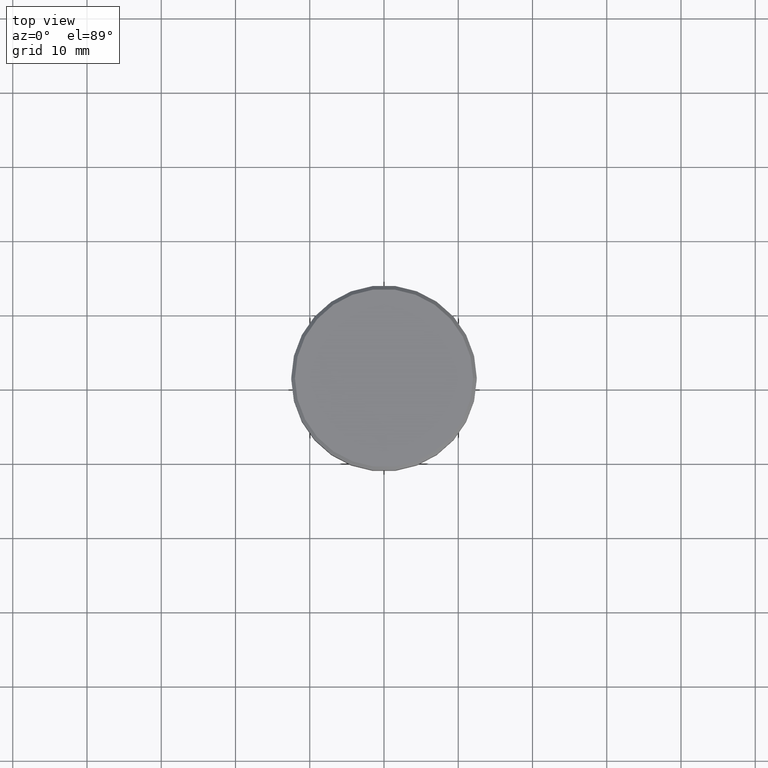
[diagram: clean part render]
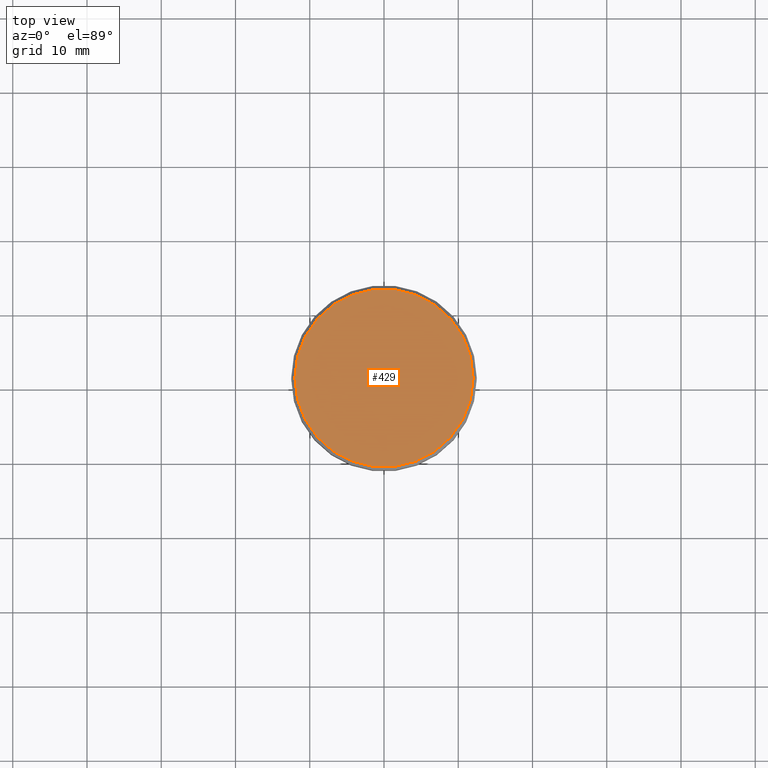
[diagram: same view with one face highlighted and labeled with its STEP entity id]
A machine part, top view. The second image highlights one B-rep face of the part: STEP entity #429.
In plain terms, the highlighted planar face has unit normal (0, -0, 1).
Its self-contained STEP definition (entity closure, byte-faithful):
#5 = ORIENTED_EDGE ( 'NONE', *, *, #711, .T. ) ;
#42 = CARTESIAN_POINT ( 'NONE',  ( 0.000000000000000000, 0.000000000000000000, 0.000000000000000000 ) ) ;
#85 = EDGE_CURVE ( 'NONE', #1008, #692, #334, .T. ) ;
#109 = CARTESIAN_POINT ( 'NONE',  ( 12.00000000000002487, 1.500192328955509115E-15, 0.000000000000000000 ) ) ;
#132 = DIRECTION ( 'NONE',  ( 1.000000000000000000, 0.000000000000000000, 0.000000000000000000 ) ) ;
#135 = DIRECTION ( 'NONE',  ( -0.000000000000000000, -0.000000000000000000, 1.000000000000000000 ) ) ;
#180 = CIRCLE ( 'NONE', #199, 12.00000000000002487 ) ;
#199 = AXIS2_PLACEMENT_3D ( 'NONE', #492, #135, #206 ) ;
#206 = DIRECTION ( 'NONE',  ( 1.000000000000000000, 0.000000000000000000, 0.000000000000000000 ) ) ;
#310 = AXIS2_PLACEMENT_3D ( 'NONE', #575, #937, #132 ) ;
#334 = CIRCLE ( 'NONE', #1017, 12.00000000000002487 ) ;
#376 = EDGE_LOOP ( 'NONE', ( #5, #468 ) ) ;
#429 = ADVANCED_FACE ( 'NONE', ( #855 ), #932, .T. ) ;
#468 = ORIENTED_EDGE ( 'NONE', *, *, #85, .T. ) ;
#492 = CARTESIAN_POINT ( 'NONE',  ( 0.000000000000000000, 0.000000000000000000, 0.000000000000000000 ) ) ;
#575 = CARTESIAN_POINT ( 'NONE',  ( 0.000000000000000000, 0.000000000000000000, 0.000000000000000000 ) ) ;
#586 = CARTESIAN_POINT ( 'NONE',  ( -12.00000000000002487, 0.000000000000000000, 0.000000000000000000 ) ) ;
#590 = DIRECTION ( 'NONE',  ( 1.000000000000000000, 0.000000000000000000, 0.000000000000000000 ) ) ;
#692 = VERTEX_POINT ( 'NONE', #586 ) ;
#711 = EDGE_CURVE ( 'NONE', #692, #1008, #180, .T. ) ;
#855 = FACE_OUTER_BOUND ( 'NONE', #376, .T. ) ;
#932 = PLANE ( 'NONE',  #310 ) ;
#937 = DIRECTION ( 'NONE',  ( 0.000000000000000000, -0.000000000000000000, 1.000000000000000000 ) ) ;
#1008 = VERTEX_POINT ( 'NONE', #109 ) ;
#1017 = AXIS2_PLACEMENT_3D ( 'NONE', #42, #1058, #590 ) ;
#1058 = DIRECTION ( 'NONE',  ( -0.000000000000000000, -0.000000000000000000, 1.000000000000000000 ) ) ;